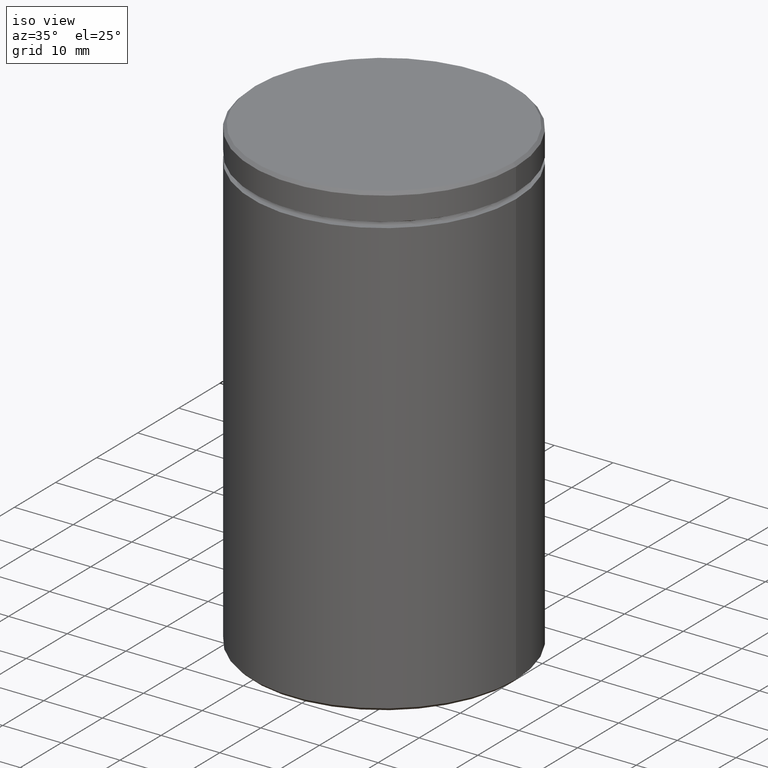
[diagram: clean part render]
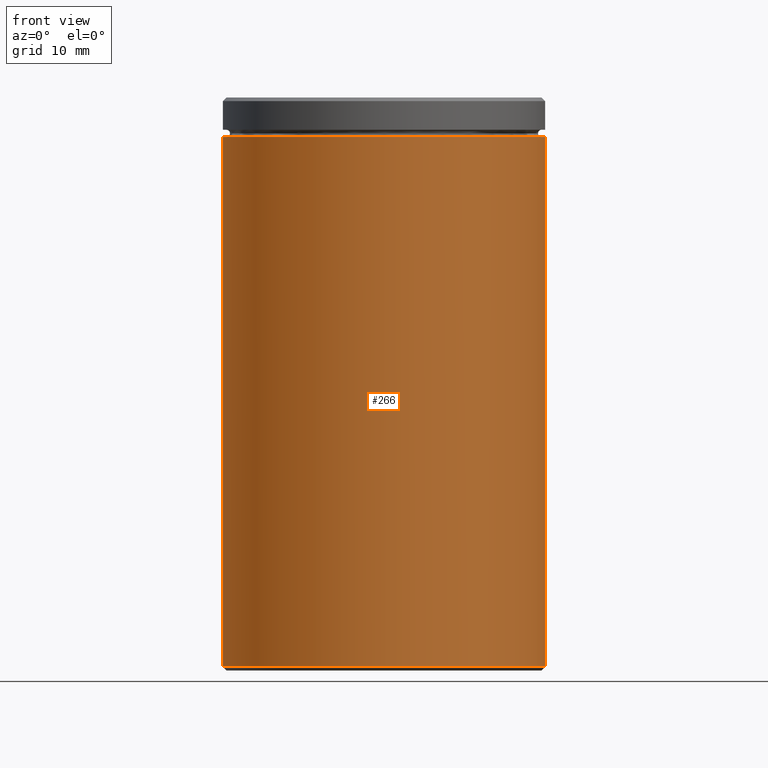
[diagram: tour spotlight — one face highlighted and labeled with its STEP entity id]
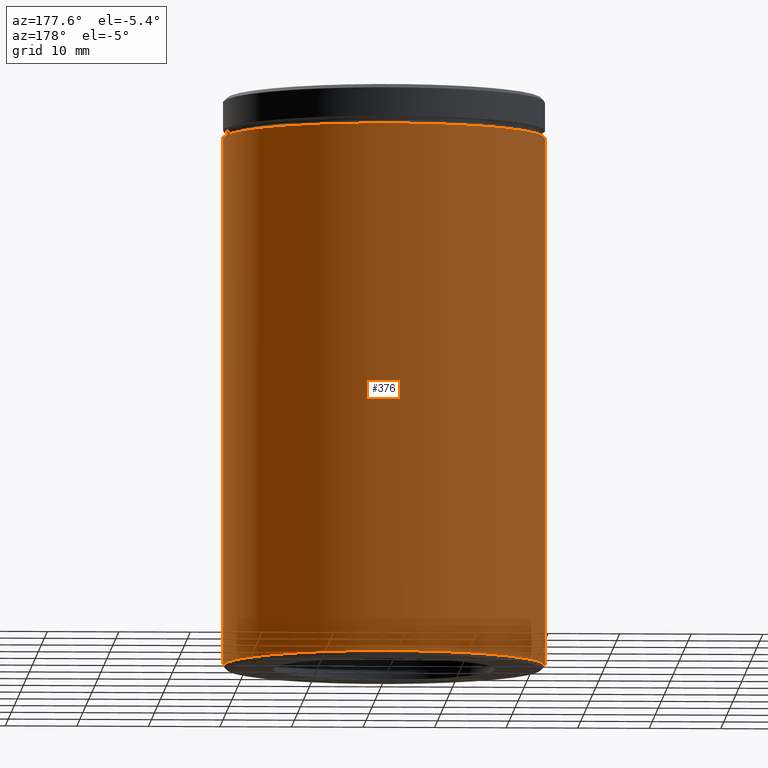
[diagram: tour spotlight — one face highlighted and labeled with its STEP entity id]
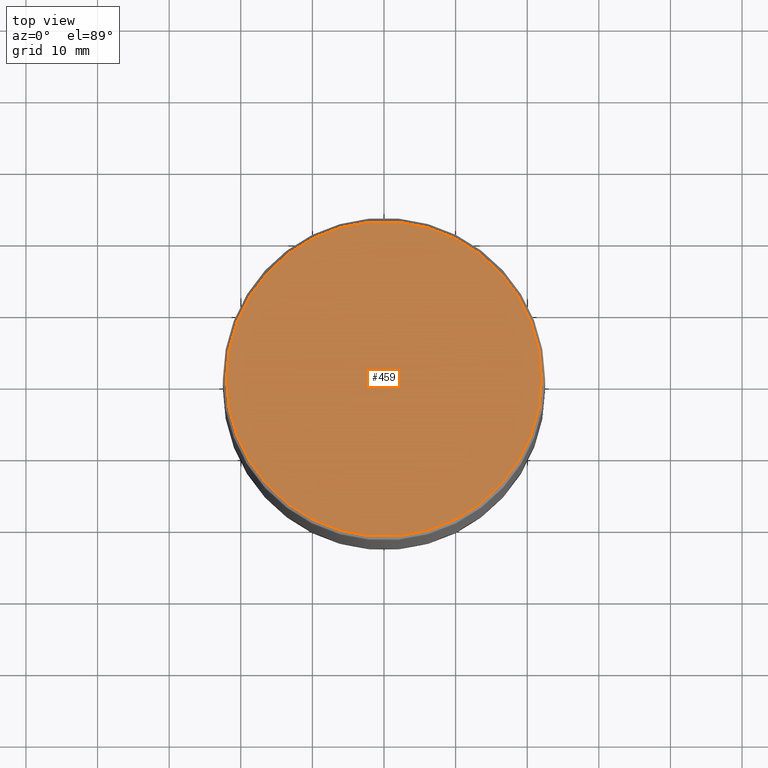
[diagram: tour spotlight — one face highlighted and labeled with its STEP entity id]
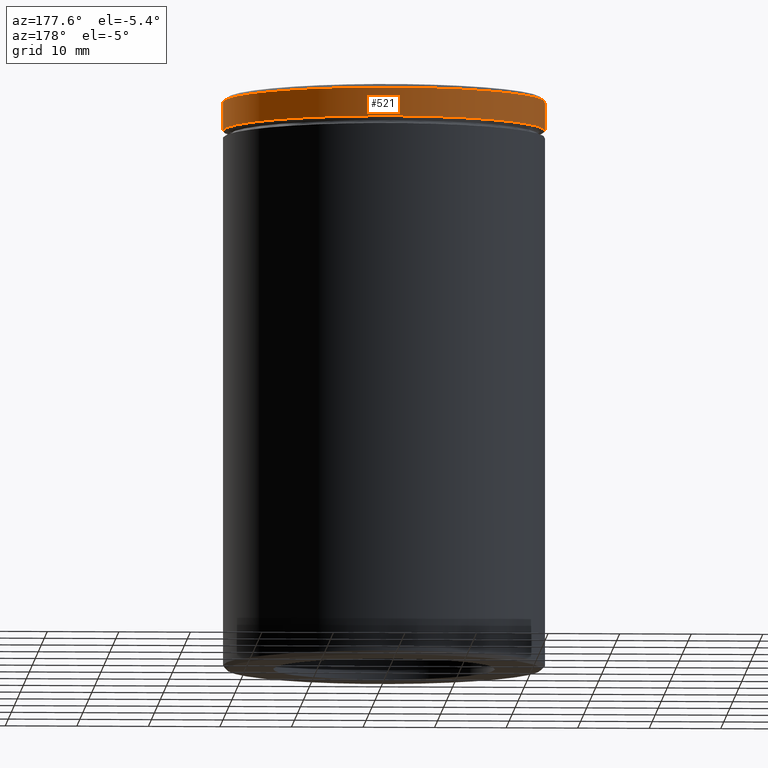
[diagram: tour spotlight — one face highlighted and labeled with its STEP entity id]
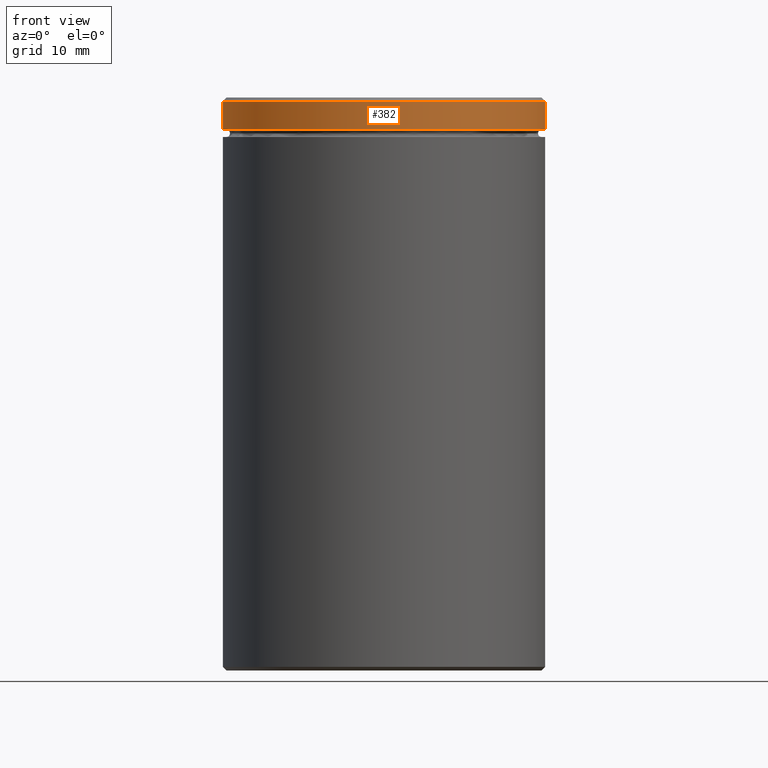
[diagram: tour spotlight — one face highlighted and labeled with its STEP entity id]
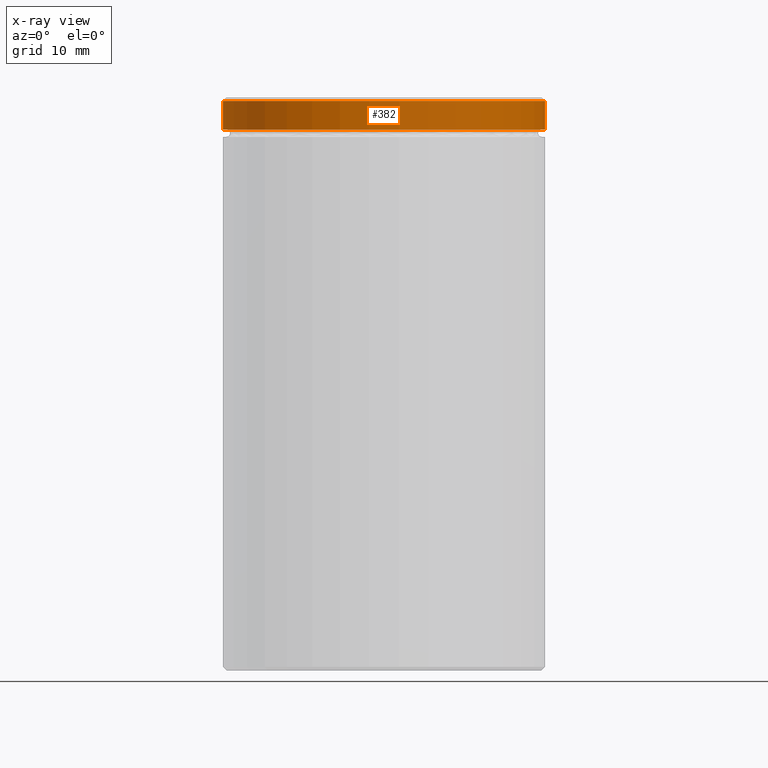
[diagram: x-ray of the same camera — body ghosted, this tour face saturated]
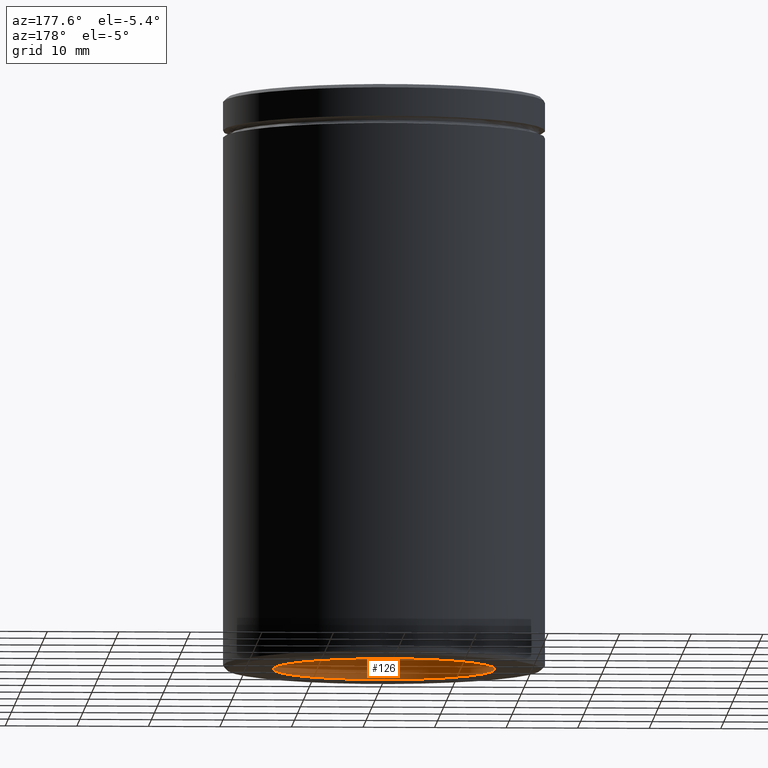
[diagram: tour spotlight — one face highlighted and labeled with its STEP entity id]
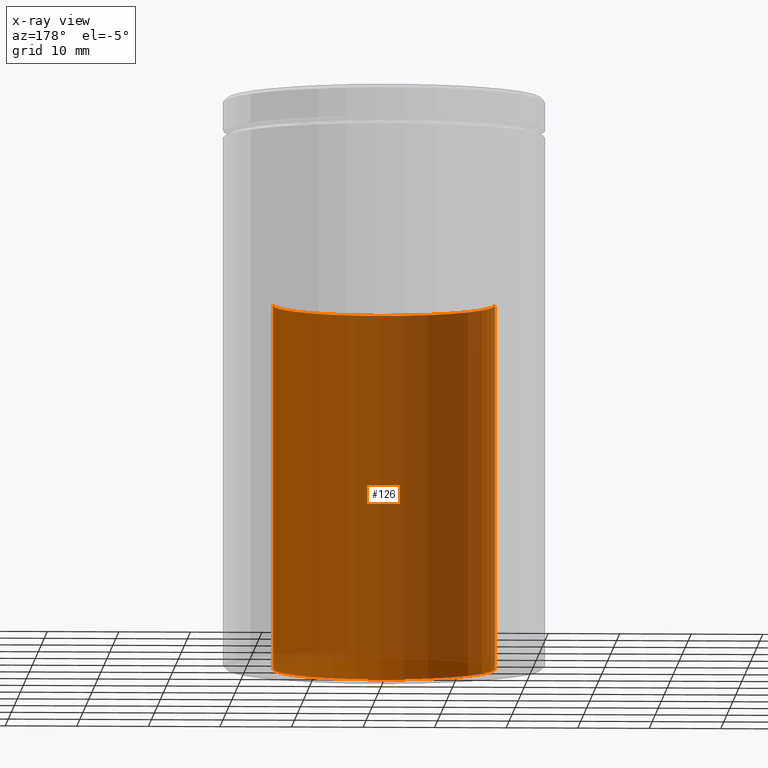
[diagram: x-ray of the same camera — body ghosted, this tour face saturated]
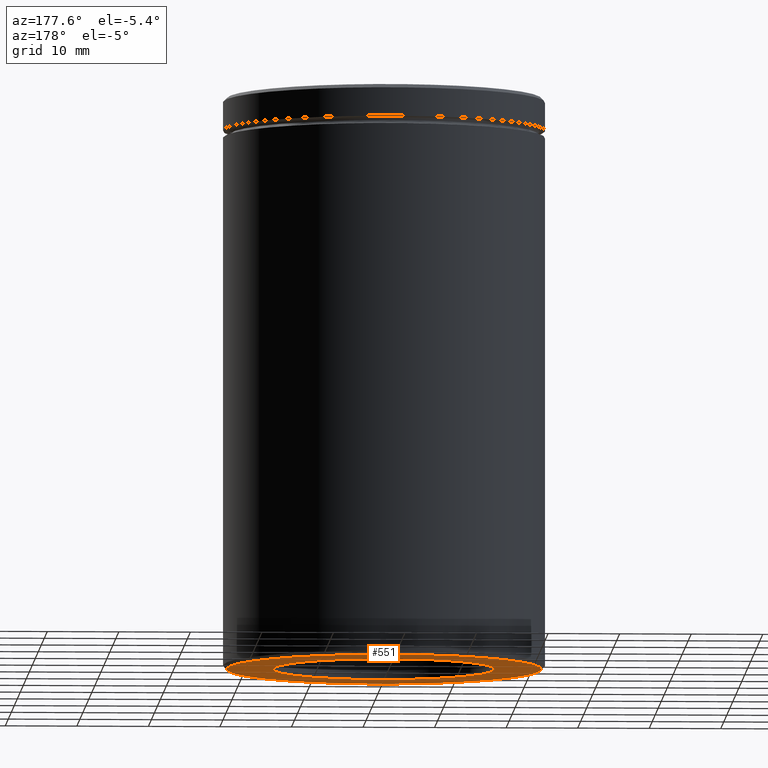
[diagram: tour spotlight — one face highlighted and labeled with its STEP entity id]
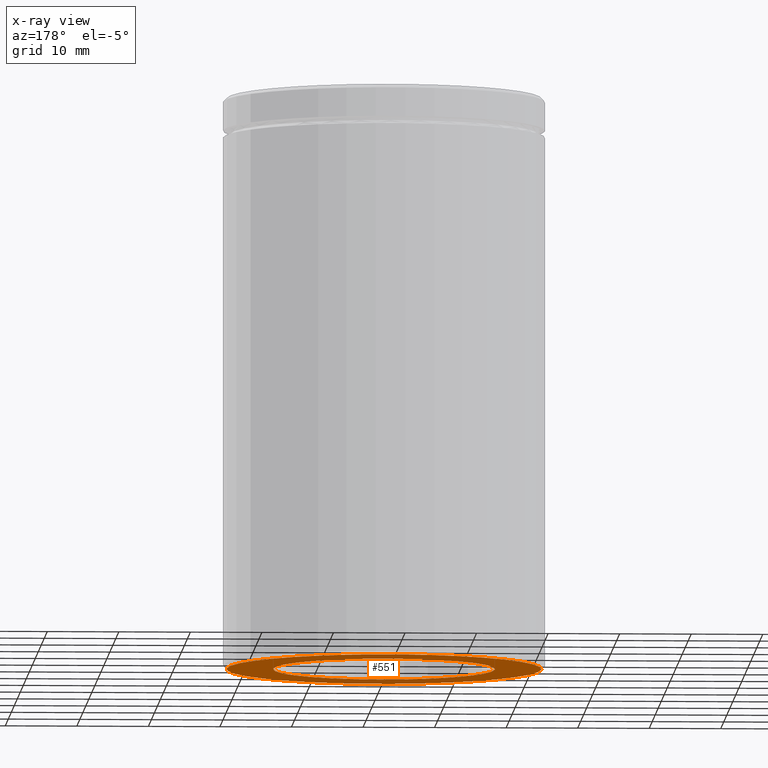
[diagram: x-ray of the same camera — body ghosted, this tour face saturated]
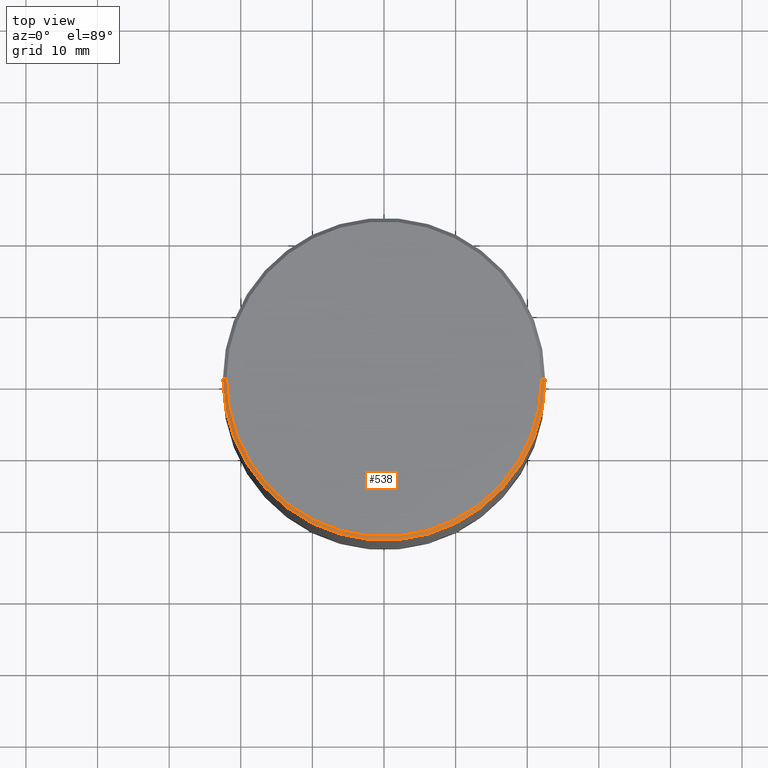
[diagram: tour spotlight — one face highlighted and labeled with its STEP entity id]
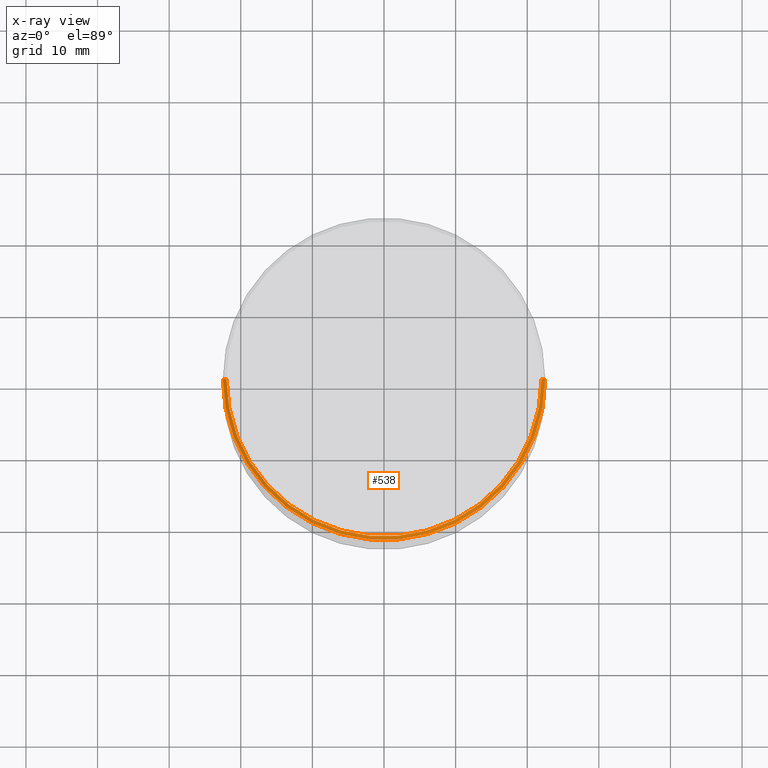
[diagram: x-ray of the same camera — body ghosted, this tour face saturated]
A machine part: a face-by-face anatomy tour. The part has 19 B-rep faces; the first image is the clean iso view, then the 8 largest visible faces are spotlighted one at a time (largest first), each with its STEP entity span.

Face 1 — front view, entity #266. In plain terms, the highlighted cylindrical surface (partial cylindrical patch) has radius 22.5 mm, axis along (-0, -0, 1).
Definition (entity closure, byte-faithful):
#1 = CARTESIAN_POINT ( 'NONE',  ( -22.50000000000000000, 2.755455298081544778E-15, 0.000000000000000000 ) ) ;
#6 = CARTESIAN_POINT ( 'NONE',  ( -22.50000000000000000, 2.755455298081544778E-15, -79.49999999999998579 ) ) ;
#15 = AXIS2_PLACEMENT_3D ( 'NONE', #420, #498, #107 ) ;
#24 = DIRECTION ( 'NONE',  ( 1.000000000000000000, 0.000000000000000000, 0.000000000000000000 ) ) ;
#27 = ORIENTED_EDGE ( 'NONE', *, *, #334, .F. ) ;
#34 = CARTESIAN_POINT ( 'NONE',  ( -22.50000000000000000, 2.755455298081544778E-15, -5.500000000000000000 ) ) ;
#36 = ORIENTED_EDGE ( 'NONE', *, *, #191, .T. ) ;
#66 = CYLINDRICAL_SURFACE ( 'NONE', #457, 22.50000000000000000 ) ;
#76 = DIRECTION ( 'NONE',  ( -0.000000000000000000, -0.000000000000000000, 1.000000000000000000 ) ) ;
#81 = DIRECTION ( 'NONE',  ( -0.000000000000000000, -0.000000000000000000, 1.000000000000000000 ) ) ;
#91 = LINE ( 'NONE', #1, #527 ) ;
#107 = DIRECTION ( 'NONE',  ( 1.000000000000000000, 0.000000000000000000, 0.000000000000000000 ) ) ;
#123 = DIRECTION ( 'NONE',  ( -1.000000000000000000, 0.000000000000000000, 0.000000000000000000 ) ) ;
#166 = CARTESIAN_POINT ( 'NONE',  ( 22.50000000000000000, 0.000000000000000000, -79.49999999999998579 ) ) ;
#173 = EDGE_CURVE ( 'NONE', #197, #409, #91, .T. ) ;
#191 = EDGE_CURVE ( 'NONE', #450, #312, #234, .T. ) ;
#193 = CIRCLE ( 'NONE', #258, 22.50000000000000000 ) ;
#194 = FACE_OUTER_BOUND ( 'NONE', #495, .T. ) ;
#197 = VERTEX_POINT ( 'NONE', #6 ) ;
#202 = CIRCLE ( 'NONE', #15, 22.50000000000000000 ) ;
#234 = LINE ( 'NONE', #273, #417 ) ;
#248 = CARTESIAN_POINT ( 'NONE',  ( 0.000000000000000000, 0.000000000000000000, 0.000000000000000000 ) ) ;
#258 = AXIS2_PLACEMENT_3D ( 'NONE', #315, #76, #123 ) ;
#266 = ADVANCED_FACE ( 'NONE', ( #194 ), #66, .T. ) ;
#273 = CARTESIAN_POINT ( 'NONE',  ( 22.50000000000000000, 0.000000000000000000, 0.000000000000000000 ) ) ;
#282 = DIRECTION ( 'NONE',  ( -0.000000000000000000, -0.000000000000000000, 1.000000000000000000 ) ) ;
#312 = VERTEX_POINT ( 'NONE', #456 ) ;
#315 = CARTESIAN_POINT ( 'NONE',  ( 0.000000000000000000, 0.000000000000000000, -79.49999999999998579 ) ) ;
#334 = EDGE_CURVE ( 'NONE', #409, #312, #202, .T. ) ;
#404 = EDGE_CURVE ( 'NONE', #197, #450, #193, .T. ) ;
#409 = VERTEX_POINT ( 'NONE', #34 ) ;
#412 = DIRECTION ( 'NONE',  ( -0.000000000000000000, -0.000000000000000000, 1.000000000000000000 ) ) ;
#417 = VECTOR ( 'NONE', #81, 1000.000000000000000 ) ;
#420 = CARTESIAN_POINT ( 'NONE',  ( 0.000000000000000000, 0.000000000000000000, -5.500000000000000000 ) ) ;
#442 = ORIENTED_EDGE ( 'NONE', *, *, #404, .T. ) ;
#450 = VERTEX_POINT ( 'NONE', #166 ) ;
#456 = CARTESIAN_POINT ( 'NONE',  ( 22.50000000000000000, 0.000000000000000000, -5.500000000000000000 ) ) ;
#457 = AXIS2_PLACEMENT_3D ( 'NONE', #248, #282, #24 ) ;
#494 = ORIENTED_EDGE ( 'NONE', *, *, #173, .F. ) ;
#495 = EDGE_LOOP ( 'NONE', ( #494, #442, #36, #27 ) ) ;
#498 = DIRECTION ( 'NONE',  ( -0.000000000000000000, -0.000000000000000000, 1.000000000000000000 ) ) ;
#527 = VECTOR ( 'NONE', #412, 1000.000000000000000 ) ;

Face 2 — auxiliary view, entity #376. In plain terms, the highlighted cylindrical surface (partial cylindrical patch) has radius 22.5 mm, axis along (-0, -0, 1).
Definition (entity closure, byte-faithful):
#1 = CARTESIAN_POINT ( 'NONE',  ( -22.50000000000000000, 2.755455298081544778E-15, 0.000000000000000000 ) ) ;
#6 = CARTESIAN_POINT ( 'NONE',  ( -22.50000000000000000, 2.755455298081544778E-15, -79.49999999999998579 ) ) ;
#34 = CARTESIAN_POINT ( 'NONE',  ( -22.50000000000000000, 2.755455298081544778E-15, -5.500000000000000000 ) ) ;
#40 = DIRECTION ( 'NONE',  ( -1.000000000000000000, 0.000000000000000000, 0.000000000000000000 ) ) ;
#50 = CIRCLE ( 'NONE', #436, 22.50000000000000000 ) ;
#53 = DIRECTION ( 'NONE',  ( 1.000000000000000000, 0.000000000000000000, 0.000000000000000000 ) ) ;
#81 = DIRECTION ( 'NONE',  ( -0.000000000000000000, -0.000000000000000000, 1.000000000000000000 ) ) ;
#91 = LINE ( 'NONE', #1, #527 ) ;
#97 = EDGE_LOOP ( 'NONE', ( #410, #486, #331, #489 ) ) ;
#131 = CYLINDRICAL_SURFACE ( 'NONE', #316, 22.50000000000000000 ) ;
#166 = CARTESIAN_POINT ( 'NONE',  ( 22.50000000000000000, 0.000000000000000000, -79.49999999999998579 ) ) ;
#173 = EDGE_CURVE ( 'NONE', #197, #409, #91, .T. ) ;
#181 = DIRECTION ( 'NONE',  ( -0.000000000000000000, -0.000000000000000000, 1.000000000000000000 ) ) ;
#191 = EDGE_CURVE ( 'NONE', #450, #312, #234, .T. ) ;
#197 = VERTEX_POINT ( 'NONE', #6 ) ;
#205 = CARTESIAN_POINT ( 'NONE',  ( 0.000000000000000000, 0.000000000000000000, -5.500000000000000000 ) ) ;
#221 = EDGE_CURVE ( 'NONE', #450, #197, #292, .T. ) ;
#228 = CARTESIAN_POINT ( 'NONE',  ( 0.000000000000000000, 0.000000000000000000, -79.49999999999998579 ) ) ;
#234 = LINE ( 'NONE', #273, #417 ) ;
#261 = DIRECTION ( 'NONE',  ( 1.000000000000000000, 0.000000000000000000, 0.000000000000000000 ) ) ;
#273 = CARTESIAN_POINT ( 'NONE',  ( 22.50000000000000000, 0.000000000000000000, 0.000000000000000000 ) ) ;
#292 = CIRCLE ( 'NONE', #541, 22.50000000000000000 ) ;
#312 = VERTEX_POINT ( 'NONE', #456 ) ;
#316 = AXIS2_PLACEMENT_3D ( 'NONE', #320, #367, #53 ) ;
#320 = CARTESIAN_POINT ( 'NONE',  ( 0.000000000000000000, 0.000000000000000000, 0.000000000000000000 ) ) ;
#331 = ORIENTED_EDGE ( 'NONE', *, *, #397, .F. ) ;
#367 = DIRECTION ( 'NONE',  ( -0.000000000000000000, -0.000000000000000000, 1.000000000000000000 ) ) ;
#376 = ADVANCED_FACE ( 'NONE', ( #567 ), #131, .T. ) ;
#397 = EDGE_CURVE ( 'NONE', #312, #409, #50, .T. ) ;
#409 = VERTEX_POINT ( 'NONE', #34 ) ;
#410 = ORIENTED_EDGE ( 'NONE', *, *, #221, .T. ) ;
#412 = DIRECTION ( 'NONE',  ( -0.000000000000000000, -0.000000000000000000, 1.000000000000000000 ) ) ;
#417 = VECTOR ( 'NONE', #81, 1000.000000000000000 ) ;
#436 = AXIS2_PLACEMENT_3D ( 'NONE', #205, #471, #261 ) ;
#450 = VERTEX_POINT ( 'NONE', #166 ) ;
#456 = CARTESIAN_POINT ( 'NONE',  ( 22.50000000000000000, 0.000000000000000000, -5.500000000000000000 ) ) ;
#471 = DIRECTION ( 'NONE',  ( -0.000000000000000000, -0.000000000000000000, 1.000000000000000000 ) ) ;
#486 = ORIENTED_EDGE ( 'NONE', *, *, #173, .T. ) ;
#489 = ORIENTED_EDGE ( 'NONE', *, *, #191, .F. ) ;
#527 = VECTOR ( 'NONE', #412, 1000.000000000000000 ) ;
#541 = AXIS2_PLACEMENT_3D ( 'NONE', #228, #181, #40 ) ;
#567 = FACE_OUTER_BOUND ( 'NONE', #97, .T. ) ;

Face 3 — top view, entity #459. In plain terms, the highlighted planar face has unit normal (0, -0, 1).
Definition (entity closure, byte-faithful):
#29 = EDGE_CURVE ( 'NONE', #403, #329, #89, .T. ) ;
#43 = CARTESIAN_POINT ( 'NONE',  ( 0.000000000000000000, 0.000000000000000000, 0.000000000000000000 ) ) ;
#89 = CIRCLE ( 'NONE', #332, 21.99999999999999289 ) ;
#125 = CARTESIAN_POINT ( 'NONE',  ( 0.000000000000000000, 0.000000000000000000, 0.000000000000000000 ) ) ;
#213 = PLANE ( 'NONE',  #229 ) ;
#216 = CARTESIAN_POINT ( 'NONE',  ( 0.000000000000000000, 0.000000000000000000, 0.000000000000000000 ) ) ;
#229 = AXIS2_PLACEMENT_3D ( 'NONE', #43, #361, #485 ) ;
#276 = CIRCLE ( 'NONE', #472, 21.99999999999999289 ) ;
#329 = VERTEX_POINT ( 'NONE', #539 ) ;
#332 = AXIS2_PLACEMENT_3D ( 'NONE', #216, #441, #352 ) ;
#352 = DIRECTION ( 'NONE',  ( 1.000000000000000000, 0.000000000000000000, 0.000000000000000000 ) ) ;
#361 = DIRECTION ( 'NONE',  ( 0.000000000000000000, -0.000000000000000000, 1.000000000000000000 ) ) ;
#365 = ORIENTED_EDGE ( 'NONE', *, *, #446, .T. ) ;
#393 = ORIENTED_EDGE ( 'NONE', *, *, #29, .T. ) ;
#403 = VERTEX_POINT ( 'NONE', #478 ) ;
#441 = DIRECTION ( 'NONE',  ( -0.000000000000000000, -0.000000000000000000, 1.000000000000000000 ) ) ;
#446 = EDGE_CURVE ( 'NONE', #329, #403, #276, .T. ) ;
#448 = EDGE_LOOP ( 'NONE', ( #365, #393 ) ) ;
#459 = ADVANCED_FACE ( 'NONE', ( #560 ), #213, .T. ) ;
#472 = AXIS2_PLACEMENT_3D ( 'NONE', #125, #483, #557 ) ;
#478 = CARTESIAN_POINT ( 'NONE',  ( 21.99999999999999289, 2.724839128102860202E-15, 0.000000000000000000 ) ) ;
#483 = DIRECTION ( 'NONE',  ( -0.000000000000000000, -0.000000000000000000, 1.000000000000000000 ) ) ;
#485 = DIRECTION ( 'NONE',  ( 1.000000000000000000, 0.000000000000000000, 0.000000000000000000 ) ) ;
#539 = CARTESIAN_POINT ( 'NONE',  ( -21.99999999999999289, 0.000000000000000000, 0.000000000000000000 ) ) ;
#557 = DIRECTION ( 'NONE',  ( 1.000000000000000000, 0.000000000000000000, 0.000000000000000000 ) ) ;
#560 = FACE_OUTER_BOUND ( 'NONE', #448, .T. ) ;

Face 4 — auxiliary view, entity #521. In plain terms, the highlighted cylindrical surface (partial cylindrical patch) has radius 22.5 mm, axis along (-0, -0, 1).
Definition (entity closure, byte-faithful):
#21 = DIRECTION ( 'NONE',  ( -0.000000000000000000, -0.000000000000000000, 1.000000000000000000 ) ) ;
#35 = EDGE_CURVE ( 'NONE', #41, #400, #505, .T. ) ;
#41 = VERTEX_POINT ( 'NONE', #121 ) ;
#54 = EDGE_CURVE ( 'NONE', #184, #514, #349, .T. ) ;
#119 = CARTESIAN_POINT ( 'NONE',  ( -22.50000000000000000, 2.755455298081544778E-15, -4.500000000000000888 ) ) ;
#121 = CARTESIAN_POINT ( 'NONE',  ( -22.50000000000000000, 2.755455298081544778E-15, -0.5000000000000073275 ) ) ;
#134 = ORIENTED_EDGE ( 'NONE', *, *, #35, .T. ) ;
#140 = AXIS2_PLACEMENT_3D ( 'NONE', #155, #256, #507 ) ;
#155 = CARTESIAN_POINT ( 'NONE',  ( 0.000000000000000000, 0.000000000000000000, 0.000000000000000000 ) ) ;
#157 = DIRECTION ( 'NONE',  ( -0.000000000000000000, -0.000000000000000000, 1.000000000000000000 ) ) ;
#160 = FACE_OUTER_BOUND ( 'NONE', #182, .T. ) ;
#182 = EDGE_LOOP ( 'NONE', ( #186, #434, #134, #356 ) ) ;
#184 = VERTEX_POINT ( 'NONE', #452 ) ;
#186 = ORIENTED_EDGE ( 'NONE', *, *, #54, .T. ) ;
#198 = CARTESIAN_POINT ( 'NONE',  ( 0.000000000000000000, 0.000000000000000000, -4.500000000000000888 ) ) ;
#211 = CARTESIAN_POINT ( 'NONE',  ( 22.50000000000000000, 0.000000000000000000, -0.5000000000000073275 ) ) ;
#212 = DIRECTION ( 'NONE',  ( 1.000000000000000000, 0.000000000000000000, 0.000000000000000000 ) ) ;
#256 = DIRECTION ( 'NONE',  ( -0.000000000000000000, -0.000000000000000000, 1.000000000000000000 ) ) ;
#257 = EDGE_CURVE ( 'NONE', #514, #41, #286, .T. ) ;
#270 = LINE ( 'NONE', #402, #568 ) ;
#286 = LINE ( 'NONE', #462, #373 ) ;
#344 = DIRECTION ( 'NONE',  ( 1.000000000000000000, 0.000000000000000000, 0.000000000000000000 ) ) ;
#349 = CIRCLE ( 'NONE', #515, 22.50000000000000000 ) ;
#356 = ORIENTED_EDGE ( 'NONE', *, *, #411, .F. ) ;
#373 = VECTOR ( 'NONE', #21, 1000.000000000000000 ) ;
#392 = DIRECTION ( 'NONE',  ( -0.000000000000000000, -0.000000000000000000, 1.000000000000000000 ) ) ;
#400 = VERTEX_POINT ( 'NONE', #211 ) ;
#402 = CARTESIAN_POINT ( 'NONE',  ( 22.50000000000000000, 0.000000000000000000, 0.000000000000000000 ) ) ;
#411 = EDGE_CURVE ( 'NONE', #184, #400, #270, .T. ) ;
#434 = ORIENTED_EDGE ( 'NONE', *, *, #257, .T. ) ;
#452 = CARTESIAN_POINT ( 'NONE',  ( 22.50000000000000000, 0.000000000000000000, -4.500000000000000888 ) ) ;
#462 = CARTESIAN_POINT ( 'NONE',  ( -22.50000000000000000, 2.755455298081544778E-15, 0.000000000000000000 ) ) ;
#466 = CYLINDRICAL_SURFACE ( 'NONE', #140, 22.50000000000000000 ) ;
#505 = CIRCLE ( 'NONE', #547, 22.50000000000000000 ) ;
#507 = DIRECTION ( 'NONE',  ( 1.000000000000000000, 0.000000000000000000, 0.000000000000000000 ) ) ;
#508 = DIRECTION ( 'NONE',  ( 0.000000000000000000, 0.000000000000000000, -1.000000000000000000 ) ) ;
#514 = VERTEX_POINT ( 'NONE', #119 ) ;
#515 = AXIS2_PLACEMENT_3D ( 'NONE', #198, #157, #344 ) ;
#519 = CARTESIAN_POINT ( 'NONE',  ( 0.000000000000000000, 0.000000000000000000, -0.5000000000000073275 ) ) ;
#521 = ADVANCED_FACE ( 'NONE', ( #160 ), #466, .T. ) ;
#547 = AXIS2_PLACEMENT_3D ( 'NONE', #519, #508, #212 ) ;
#568 = VECTOR ( 'NONE', #392, 1000.000000000000000 ) ;

Face 5 — front view, entity #382. An x-ray twin of the same camera follows (body ghosted, this face saturated) — the face is partly hidden behind the body. In plain terms, the highlighted cylindrical surface (partial cylindrical patch) has radius 22.5 mm, axis along (-0, -0, 1).
Definition (entity closure, byte-faithful):
#10 = CYLINDRICAL_SURFACE ( 'NONE', #100, 22.50000000000000000 ) ;
#20 = ORIENTED_EDGE ( 'NONE', *, *, #257, .F. ) ;
#21 = DIRECTION ( 'NONE',  ( -0.000000000000000000, -0.000000000000000000, 1.000000000000000000 ) ) ;
#37 = DIRECTION ( 'NONE',  ( 1.000000000000000000, 0.000000000000000000, 0.000000000000000000 ) ) ;
#38 = EDGE_LOOP ( 'NONE', ( #20, #175, #522, #44 ) ) ;
#41 = VERTEX_POINT ( 'NONE', #121 ) ;
#44 = ORIENTED_EDGE ( 'NONE', *, *, #531, .T. ) ;
#100 = AXIS2_PLACEMENT_3D ( 'NONE', #187, #142, #328 ) ;
#119 = CARTESIAN_POINT ( 'NONE',  ( -22.50000000000000000, 2.755455298081544778E-15, -4.500000000000000888 ) ) ;
#121 = CARTESIAN_POINT ( 'NONE',  ( -22.50000000000000000, 2.755455298081544778E-15, -0.5000000000000073275 ) ) ;
#142 = DIRECTION ( 'NONE',  ( -0.000000000000000000, -0.000000000000000000, 1.000000000000000000 ) ) ;
#145 = EDGE_CURVE ( 'NONE', #514, #184, #201, .T. ) ;
#161 = DIRECTION ( 'NONE',  ( -0.000000000000000000, -0.000000000000000000, 1.000000000000000000 ) ) ;
#175 = ORIENTED_EDGE ( 'NONE', *, *, #145, .T. ) ;
#184 = VERTEX_POINT ( 'NONE', #452 ) ;
#187 = CARTESIAN_POINT ( 'NONE',  ( 0.000000000000000000, 0.000000000000000000, 0.000000000000000000 ) ) ;
#201 = CIRCLE ( 'NONE', #526, 22.50000000000000000 ) ;
#211 = CARTESIAN_POINT ( 'NONE',  ( 22.50000000000000000, 0.000000000000000000, -0.5000000000000073275 ) ) ;
#255 = CARTESIAN_POINT ( 'NONE',  ( 0.000000000000000000, 0.000000000000000000, -4.500000000000000888 ) ) ;
#257 = EDGE_CURVE ( 'NONE', #514, #41, #286, .T. ) ;
#270 = LINE ( 'NONE', #402, #568 ) ;
#286 = LINE ( 'NONE', #462, #373 ) ;
#326 = CIRCLE ( 'NONE', #465, 22.50000000000000000 ) ;
#328 = DIRECTION ( 'NONE',  ( 1.000000000000000000, 0.000000000000000000, 0.000000000000000000 ) ) ;
#345 = DIRECTION ( 'NONE',  ( 0.000000000000000000, 0.000000000000000000, -1.000000000000000000 ) ) ;
#373 = VECTOR ( 'NONE', #21, 1000.000000000000000 ) ;
#382 = ADVANCED_FACE ( 'NONE', ( #415 ), #10, .T. ) ;
#392 = DIRECTION ( 'NONE',  ( -0.000000000000000000, -0.000000000000000000, 1.000000000000000000 ) ) ;
#400 = VERTEX_POINT ( 'NONE', #211 ) ;
#402 = CARTESIAN_POINT ( 'NONE',  ( 22.50000000000000000, 0.000000000000000000, 0.000000000000000000 ) ) ;
#411 = EDGE_CURVE ( 'NONE', #184, #400, #270, .T. ) ;
#415 = FACE_OUTER_BOUND ( 'NONE', #38, .T. ) ;
#452 = CARTESIAN_POINT ( 'NONE',  ( 22.50000000000000000, 0.000000000000000000, -4.500000000000000888 ) ) ;
#462 = CARTESIAN_POINT ( 'NONE',  ( -22.50000000000000000, 2.755455298081544778E-15, 0.000000000000000000 ) ) ;
#465 = AXIS2_PLACEMENT_3D ( 'NONE', #555, #345, #37 ) ;
#513 = DIRECTION ( 'NONE',  ( 1.000000000000000000, 0.000000000000000000, 0.000000000000000000 ) ) ;
#514 = VERTEX_POINT ( 'NONE', #119 ) ;
#522 = ORIENTED_EDGE ( 'NONE', *, *, #411, .T. ) ;
#526 = AXIS2_PLACEMENT_3D ( 'NONE', #255, #161, #513 ) ;
#531 = EDGE_CURVE ( 'NONE', #400, #41, #326, .T. ) ;
#555 = CARTESIAN_POINT ( 'NONE',  ( 0.000000000000000000, 0.000000000000000000, -0.5000000000000073275 ) ) ;
#568 = VECTOR ( 'NONE', #392, 1000.000000000000000 ) ;

Face 6 — auxiliary view, entity #126. An x-ray twin of the same camera follows (body ghosted, this face saturated) — the face is partly hidden behind the body. In plain terms, the highlighted cylindrical surface (partial cylindrical patch) has radius 15.5 mm, axis along (-0, -0, -1).
Definition (entity closure, byte-faithful):
#12 = EDGE_CURVE ( 'NONE', #93, #368, #238, .T. ) ;
#14 = LINE ( 'NONE', #215, #108 ) ;
#56 = AXIS2_PLACEMENT_3D ( 'NONE', #165, #68, #388 ) ;
#59 = DIRECTION ( 'NONE',  ( -1.000000000000000000, 0.000000000000000000, 0.000000000000000000 ) ) ;
#68 = DIRECTION ( 'NONE',  ( -0.000000000000000000, -0.000000000000000000, -1.000000000000000000 ) ) ;
#71 = CARTESIAN_POINT ( 'NONE',  ( 15.50000000000000000, 1.898202538678397557E-15, -80.00000000000000000 ) ) ;
#78 = CARTESIAN_POINT ( 'NONE',  ( 0.000000000000000000, 0.000000000000000000, -80.00000000000000000 ) ) ;
#79 = CARTESIAN_POINT ( 'NONE',  ( 15.50000000000000000, 1.898202538678397557E-15, -29.00000000000000355 ) ) ;
#80 = EDGE_LOOP ( 'NONE', ( #469, #353, #207, #87 ) ) ;
#87 = ORIENTED_EDGE ( 'NONE', *, *, #283, .F. ) ;
#90 = AXIS2_PLACEMENT_3D ( 'NONE', #78, #517, #200 ) ;
#93 = VERTEX_POINT ( 'NONE', #79 ) ;
#102 = CARTESIAN_POINT ( 'NONE',  ( 0.000000000000000000, 0.000000000000000000, -29.00000000000000355 ) ) ;
#108 = VECTOR ( 'NONE', #322, 1000.000000000000000 ) ;
#117 = CIRCLE ( 'NONE', #90, 15.50000000000000000 ) ;
#126 = ADVANCED_FACE ( 'NONE', ( #552 ), #556, .F. ) ;
#144 = DIRECTION ( 'NONE',  ( 0.000000000000000000, 0.000000000000000000, -1.000000000000000000 ) ) ;
#165 = CARTESIAN_POINT ( 'NONE',  ( 0.000000000000000000, 0.000000000000000000, -29.00000000000000355 ) ) ;
#179 = LINE ( 'NONE', #274, #506 ) ;
#185 = EDGE_CURVE ( 'NONE', #93, #488, #179, .T. ) ;
#200 = DIRECTION ( 'NONE',  ( -1.000000000000000000, 0.000000000000000000, 0.000000000000000000 ) ) ;
#207 = ORIENTED_EDGE ( 'NONE', *, *, #497, .T. ) ;
#215 = CARTESIAN_POINT ( 'NONE',  ( -15.50000000000000000, 0.000000000000000000, -29.00000000000000355 ) ) ;
#217 = AXIS2_PLACEMENT_3D ( 'NONE', #102, #144, #59 ) ;
#238 = CIRCLE ( 'NONE', #217, 15.50000000000000000 ) ;
#272 = CARTESIAN_POINT ( 'NONE',  ( -15.50000000000000000, 0.000000000000000000, -29.00000000000000355 ) ) ;
#274 = CARTESIAN_POINT ( 'NONE',  ( 15.50000000000000000, 1.898202538678397557E-15, -29.00000000000000355 ) ) ;
#283 = EDGE_CURVE ( 'NONE', #368, #310, #14, .T. ) ;
#310 = VERTEX_POINT ( 'NONE', #496 ) ;
#322 = DIRECTION ( 'NONE',  ( -0.000000000000000000, -0.000000000000000000, -1.000000000000000000 ) ) ;
#353 = ORIENTED_EDGE ( 'NONE', *, *, #185, .T. ) ;
#368 = VERTEX_POINT ( 'NONE', #272 ) ;
#388 = DIRECTION ( 'NONE',  ( -1.000000000000000000, 0.000000000000000000, 0.000000000000000000 ) ) ;
#447 = DIRECTION ( 'NONE',  ( -0.000000000000000000, -0.000000000000000000, -1.000000000000000000 ) ) ;
#469 = ORIENTED_EDGE ( 'NONE', *, *, #12, .F. ) ;
#488 = VERTEX_POINT ( 'NONE', #71 ) ;
#496 = CARTESIAN_POINT ( 'NONE',  ( -15.50000000000000000, 0.000000000000000000, -80.00000000000000000 ) ) ;
#497 = EDGE_CURVE ( 'NONE', #488, #310, #117, .T. ) ;
#506 = VECTOR ( 'NONE', #447, 1000.000000000000000 ) ;
#517 = DIRECTION ( 'NONE',  ( 0.000000000000000000, 0.000000000000000000, -1.000000000000000000 ) ) ;
#552 = FACE_OUTER_BOUND ( 'NONE', #80, .T. ) ;
#556 = CYLINDRICAL_SURFACE ( 'NONE', #56, 15.50000000000000000 ) ;

Face 7 — auxiliary view, entity #551. An x-ray twin of the same camera follows (body ghosted, this face saturated) — the face is partly hidden behind the body. In plain terms, the highlighted planar face has unit normal (0, 0, -1).
Definition (entity closure, byte-faithful):
#3 = EDGE_CURVE ( 'NONE', #138, #230, #540, .T. ) ;
#5 = FACE_BOUND ( 'NONE', #77, .T. ) ;
#7 = ORIENTED_EDGE ( 'NONE', *, *, #497, .F. ) ;
#25 = CARTESIAN_POINT ( 'NONE',  ( 0.000000000000000000, 0.000000000000000000, -80.00000000000000000 ) ) ;
#71 = CARTESIAN_POINT ( 'NONE',  ( 15.50000000000000000, 1.898202538678397557E-15, -80.00000000000000000 ) ) ;
#72 = CARTESIAN_POINT ( 'NONE',  ( -22.00000000000000000, 2.724839128102860991E-15, -80.00000000000000000 ) ) ;
#77 = EDGE_LOOP ( 'NONE', ( #455, #7 ) ) ;
#78 = CARTESIAN_POINT ( 'NONE',  ( 0.000000000000000000, 0.000000000000000000, -80.00000000000000000 ) ) ;
#90 = AXIS2_PLACEMENT_3D ( 'NONE', #78, #517, #200 ) ;
#99 = DIRECTION ( 'NONE',  ( -1.000000000000000000, 0.000000000000000000, 0.000000000000000000 ) ) ;
#113 = DIRECTION ( 'NONE',  ( 0.000000000000000000, 0.000000000000000000, -1.000000000000000000 ) ) ;
#117 = CIRCLE ( 'NONE', #90, 15.50000000000000000 ) ;
#127 = CIRCLE ( 'NONE', #168, 22.00000000000000000 ) ;
#135 = PLANE ( 'NONE',  #278 ) ;
#137 = EDGE_CURVE ( 'NONE', #230, #138, #127, .T. ) ;
#138 = VERTEX_POINT ( 'NONE', #72 ) ;
#149 = DIRECTION ( 'NONE',  ( 0.000000000000000000, 0.000000000000000000, -1.000000000000000000 ) ) ;
#168 = AXIS2_PLACEMENT_3D ( 'NONE', #546, #113, #297 ) ;
#176 = AXIS2_PLACEMENT_3D ( 'NONE', #330, #149, #99 ) ;
#200 = DIRECTION ( 'NONE',  ( -1.000000000000000000, 0.000000000000000000, 0.000000000000000000 ) ) ;
#230 = VERTEX_POINT ( 'NONE', #405 ) ;
#246 = AXIS2_PLACEMENT_3D ( 'NONE', #25, #544, #307 ) ;
#278 = AXIS2_PLACEMENT_3D ( 'NONE', #504, #532, #543 ) ;
#297 = DIRECTION ( 'NONE',  ( -1.000000000000000000, 0.000000000000000000, 0.000000000000000000 ) ) ;
#301 = FACE_OUTER_BOUND ( 'NONE', #561, .T. ) ;
#307 = DIRECTION ( 'NONE',  ( -1.000000000000000000, 0.000000000000000000, 0.000000000000000000 ) ) ;
#310 = VERTEX_POINT ( 'NONE', #496 ) ;
#317 = ORIENTED_EDGE ( 'NONE', *, *, #3, .T. ) ;
#330 = CARTESIAN_POINT ( 'NONE',  ( 0.000000000000000000, 0.000000000000000000, -80.00000000000000000 ) ) ;
#405 = CARTESIAN_POINT ( 'NONE',  ( 22.00000000000000000, 0.000000000000000000, -80.00000000000000000 ) ) ;
#455 = ORIENTED_EDGE ( 'NONE', *, *, #502, .F. ) ;
#488 = VERTEX_POINT ( 'NONE', #71 ) ;
#490 = ORIENTED_EDGE ( 'NONE', *, *, #137, .T. ) ;
#492 = CIRCLE ( 'NONE', #246, 15.50000000000000000 ) ;
#496 = CARTESIAN_POINT ( 'NONE',  ( -15.50000000000000000, 0.000000000000000000, -80.00000000000000000 ) ) ;
#497 = EDGE_CURVE ( 'NONE', #488, #310, #117, .T. ) ;
#502 = EDGE_CURVE ( 'NONE', #310, #488, #492, .T. ) ;
#504 = CARTESIAN_POINT ( 'NONE',  ( 0.000000000000000000, 22.50000000000000000, -80.00000000000000000 ) ) ;
#517 = DIRECTION ( 'NONE',  ( 0.000000000000000000, 0.000000000000000000, -1.000000000000000000 ) ) ;
#532 = DIRECTION ( 'NONE',  ( 0.000000000000000000, 0.000000000000000000, -1.000000000000000000 ) ) ;
#540 = CIRCLE ( 'NONE', #176, 22.00000000000000000 ) ;
#543 = DIRECTION ( 'NONE',  ( -1.000000000000000000, 0.000000000000000000, -0.000000000000000000 ) ) ;
#544 = DIRECTION ( 'NONE',  ( 0.000000000000000000, 0.000000000000000000, -1.000000000000000000 ) ) ;
#546 = CARTESIAN_POINT ( 'NONE',  ( 0.000000000000000000, 0.000000000000000000, -80.00000000000000000 ) ) ;
#551 = ADVANCED_FACE ( 'NONE', ( #301, #5 ), #135, .T. ) ;
#561 = EDGE_LOOP ( 'NONE', ( #490, #317 ) ) ;

Face 8 — top view, entity #538. An x-ray twin of the same camera follows (body ghosted, this face saturated) — the face is partly hidden behind the body. In plain terms, the highlighted conical surface has half-angle 45 deg.
Definition (entity closure, byte-faithful):
#2 = CARTESIAN_POINT ( 'NONE',  ( -21.99999999999999289, 0.000000000000000000, 0.000000000000000000 ) ) ;
#18 = EDGE_LOOP ( 'NONE', ( #480, #236, #47, #139 ) ) ;
#37 = DIRECTION ( 'NONE',  ( 1.000000000000000000, 0.000000000000000000, 0.000000000000000000 ) ) ;
#41 = VERTEX_POINT ( 'NONE', #121 ) ;
#47 = ORIENTED_EDGE ( 'NONE', *, *, #463, .T. ) ;
#112 = FACE_OUTER_BOUND ( 'NONE', #18, .T. ) ;
#116 = DIRECTION ( 'NONE',  ( -1.000000000000000000, 0.000000000000000000, 0.000000000000000000 ) ) ;
#120 = EDGE_CURVE ( 'NONE', #403, #400, #355, .T. ) ;
#121 = CARTESIAN_POINT ( 'NONE',  ( -22.50000000000000000, 2.755455298081544778E-15, -0.5000000000000073275 ) ) ;
#125 = CARTESIAN_POINT ( 'NONE',  ( 0.000000000000000000, 0.000000000000000000, 0.000000000000000000 ) ) ;
#139 = ORIENTED_EDGE ( 'NONE', *, *, #531, .F. ) ;
#211 = CARTESIAN_POINT ( 'NONE',  ( 22.50000000000000000, 0.000000000000000000, -0.5000000000000073275 ) ) ;
#220 = AXIS2_PLACEMENT_3D ( 'NONE', #295, #512, #116 ) ;
#236 = ORIENTED_EDGE ( 'NONE', *, *, #446, .F. ) ;
#276 = CIRCLE ( 'NONE', #472, 21.99999999999999289 ) ;
#295 = CARTESIAN_POINT ( 'NONE',  ( 0.000000000000000000, 0.000000000000000000, 0.000000000000000000 ) ) ;
#326 = CIRCLE ( 'NONE', #465, 22.50000000000000000 ) ;
#329 = VERTEX_POINT ( 'NONE', #539 ) ;
#340 = CONICAL_SURFACE ( 'NONE', #220, 21.99999999999999289, 0.7853981633974482790 ) ;
#345 = DIRECTION ( 'NONE',  ( 0.000000000000000000, 0.000000000000000000, -1.000000000000000000 ) ) ;
#355 = LINE ( 'NONE', #474, #425 ) ;
#364 = DIRECTION ( 'NONE',  ( -0.7071067811865474617, 0.000000000000000000, -0.7071067811865474617 ) ) ;
#391 = DIRECTION ( 'NONE',  ( 0.7071067811865474617, 8.659560562354932858E-17, -0.7071067811865474617 ) ) ;
#398 = VECTOR ( 'NONE', #364, 1000.000000000000114 ) ;
#400 = VERTEX_POINT ( 'NONE', #211 ) ;
#403 = VERTEX_POINT ( 'NONE', #478 ) ;
#425 = VECTOR ( 'NONE', #391, 1000.000000000000114 ) ;
#446 = EDGE_CURVE ( 'NONE', #329, #403, #276, .T. ) ;
#449 = LINE ( 'NONE', #2, #398 ) ;
#463 = EDGE_CURVE ( 'NONE', #329, #41, #449, .T. ) ;
#465 = AXIS2_PLACEMENT_3D ( 'NONE', #555, #345, #37 ) ;
#472 = AXIS2_PLACEMENT_3D ( 'NONE', #125, #483, #557 ) ;
#474 = CARTESIAN_POINT ( 'NONE',  ( 21.99999999999999289, 2.694222958124176020E-15, 0.000000000000000000 ) ) ;
#478 = CARTESIAN_POINT ( 'NONE',  ( 21.99999999999999289, 2.724839128102860202E-15, 0.000000000000000000 ) ) ;
#480 = ORIENTED_EDGE ( 'NONE', *, *, #120, .F. ) ;
#483 = DIRECTION ( 'NONE',  ( -0.000000000000000000, -0.000000000000000000, 1.000000000000000000 ) ) ;
#512 = DIRECTION ( 'NONE',  ( 0.000000000000000000, 0.000000000000000000, -1.000000000000000000 ) ) ;
#531 = EDGE_CURVE ( 'NONE', #400, #41, #326, .T. ) ;
#538 = ADVANCED_FACE ( 'NONE', ( #112 ), #340, .T. ) ;
#539 = CARTESIAN_POINT ( 'NONE',  ( -21.99999999999999289, 0.000000000000000000, 0.000000000000000000 ) ) ;
#555 = CARTESIAN_POINT ( 'NONE',  ( 0.000000000000000000, 0.000000000000000000, -0.5000000000000073275 ) ) ;
#557 = DIRECTION ( 'NONE',  ( 1.000000000000000000, 0.000000000000000000, 0.000000000000000000 ) ) ;